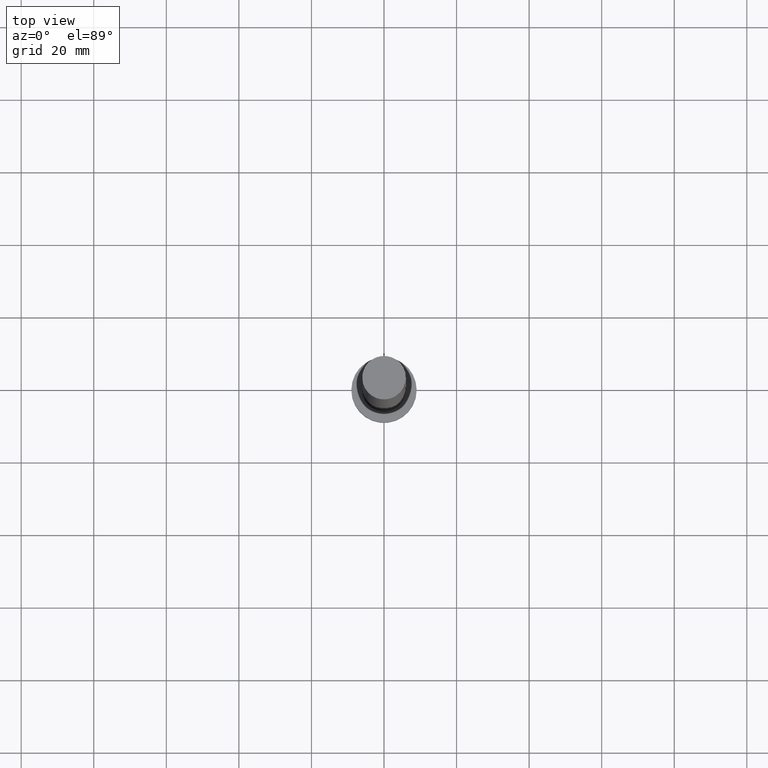
[diagram: clean part render]
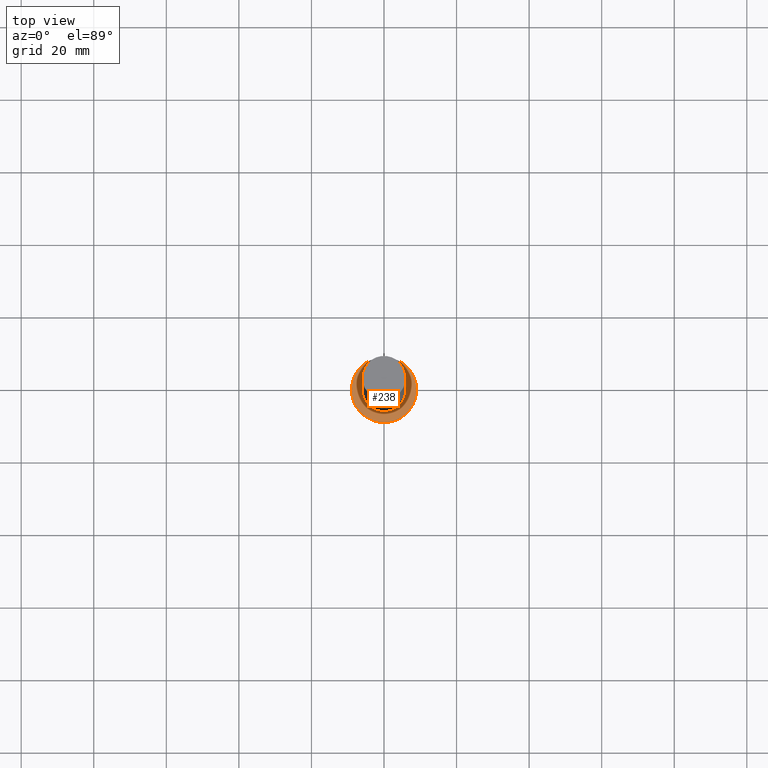
[diagram: same view with one face highlighted and labeled with its STEP entity id]
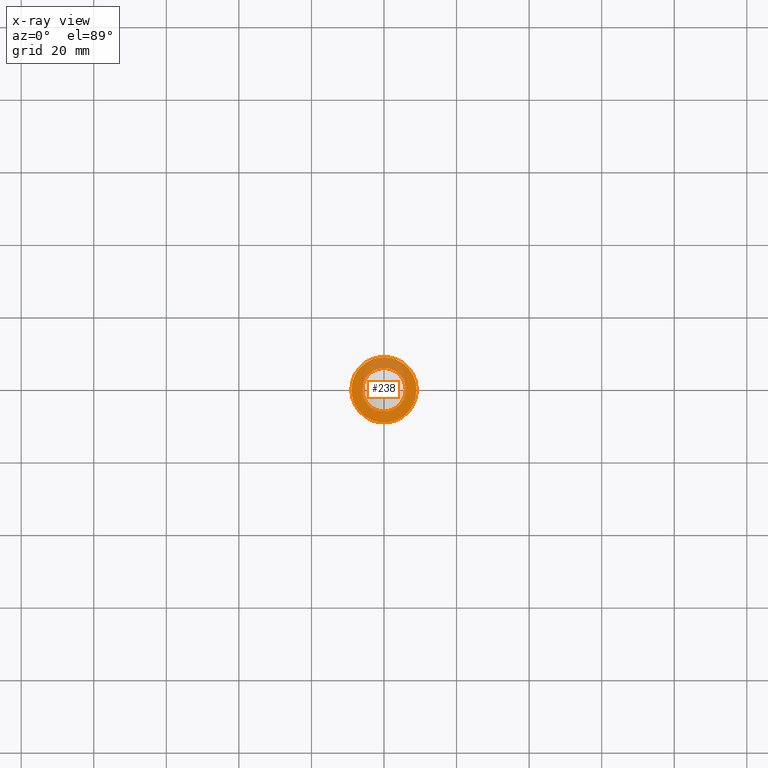
[diagram: x-ray of the same camera — body ghosted, the highlighted face saturated]
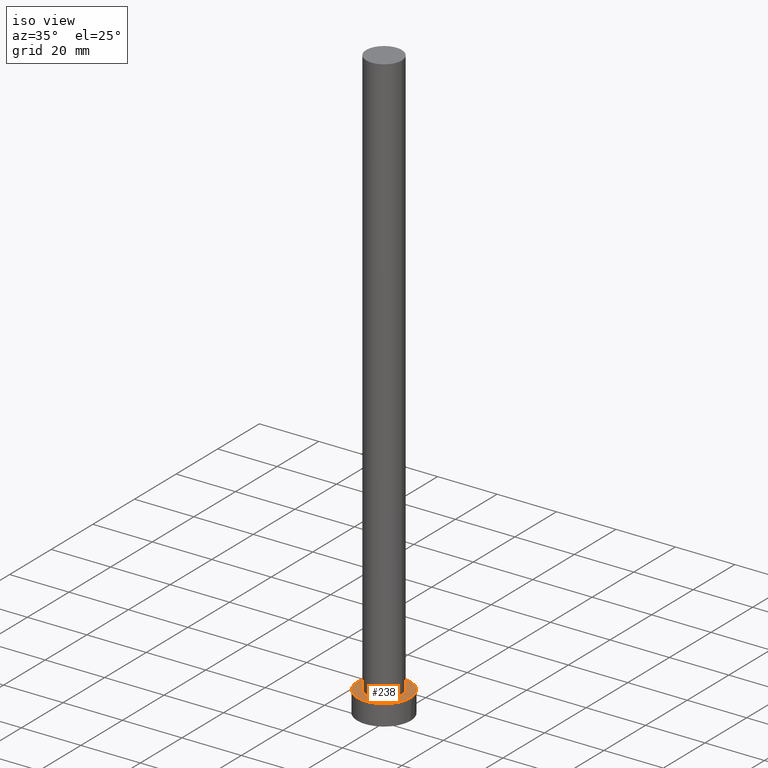
[diagram: same view with one face highlighted and labeled with its STEP entity id]
A machine part, top view. The second image highlights one B-rep face of the part: STEP entity #238.
The next image is the same camera in x-ray: the body ghosted, the highlighted face saturated — about 28% of this face is hidden behind the body in this view.
A second angle (iso view) of the same face is appended — the face is thin or edge-on in the first view.
In plain terms, the highlighted planar face has unit normal (0, 0, 1).
Its self-contained STEP definition (entity closure, byte-faithful):
#5 = ORIENTED_EDGE ( 'NONE', *, *, #43, .F. ) ;
#6 = DIRECTION ( 'NONE',  ( 1.000000000000000000, 0.000000000000000000, 0.000000000000000000 ) ) ;
#7 = VERTEX_POINT ( 'NONE', #100 ) ;
#11 = AXIS2_PLACEMENT_3D ( 'NONE', #209, #192, #178 ) ;
#20 = FACE_BOUND ( 'NONE', #222, .T. ) ;
#21 = EDGE_CURVE ( 'NONE', #115, #7, #48, .T. ) ;
#27 = VERTEX_POINT ( 'NONE', #230 ) ;
#39 = CIRCLE ( 'NONE', #116, 6.000000000000000888 ) ;
#43 = EDGE_CURVE ( 'NONE', #7, #115, #39, .T. ) ;
#48 = CIRCLE ( 'NONE', #82, 6.000000000000000888 ) ;
#49 = ORIENTED_EDGE ( 'NONE', *, *, #160, .T. ) ;
#51 = VERTEX_POINT ( 'NONE', #190 ) ;
#55 = DIRECTION ( 'NONE',  ( 1.000000000000000000, 0.000000000000000000, 0.000000000000000000 ) ) ;
#56 = CARTESIAN_POINT ( 'NONE',  ( 0.000000000000000000, 0.000000000000000000, 7.000000000000000000 ) ) ;
#60 = DIRECTION ( 'NONE',  ( 0.000000000000000000, 0.000000000000000000, 1.000000000000000000 ) ) ;
#64 = CARTESIAN_POINT ( 'NONE',  ( -6.000000000000000888, 0.000000000000000000, 7.000000000000000000 ) ) ;
#67 = ORIENTED_EDGE ( 'NONE', *, *, #21, .F. ) ;
#72 = CARTESIAN_POINT ( 'NONE',  ( 0.000000000000000000, 0.000000000000000000, 7.000000000000000000 ) ) ;
#82 = AXIS2_PLACEMENT_3D ( 'NONE', #72, #141, #174 ) ;
#83 = EDGE_CURVE ( 'NONE', #51, #27, #201, .T. ) ;
#95 = DIRECTION ( 'NONE',  ( 0.000000000000000000, 0.000000000000000000, 1.000000000000000000 ) ) ;
#99 = DIRECTION ( 'NONE',  ( 0.000000000000000000, 0.000000000000000000, 1.000000000000000000 ) ) ;
#100 = CARTESIAN_POINT ( 'NONE',  ( 6.000000000000000888, 7.347880794884120722E-16, 7.000000000000000000 ) ) ;
#106 = AXIS2_PLACEMENT_3D ( 'NONE', #167, #95, #6 ) ;
#109 = FACE_OUTER_BOUND ( 'NONE', #241, .T. ) ;
#115 = VERTEX_POINT ( 'NONE', #64 ) ;
#116 = AXIS2_PLACEMENT_3D ( 'NONE', #224, #60, #55 ) ;
#134 = CIRCLE ( 'NONE', #11, 9.000000000000000000 ) ;
#141 = DIRECTION ( 'NONE',  ( 0.000000000000000000, 0.000000000000000000, 1.000000000000000000 ) ) ;
#151 = ORIENTED_EDGE ( 'NONE', *, *, #83, .T. ) ;
#160 = EDGE_CURVE ( 'NONE', #27, #51, #134, .T. ) ;
#167 = CARTESIAN_POINT ( 'NONE',  ( 0.000000000000000000, 0.000000000000000000, 7.000000000000000000 ) ) ;
#172 = DIRECTION ( 'NONE',  ( 1.000000000000000000, 0.000000000000000000, -0.000000000000000000 ) ) ;
#174 = DIRECTION ( 'NONE',  ( 1.000000000000000000, 0.000000000000000000, 0.000000000000000000 ) ) ;
#178 = DIRECTION ( 'NONE',  ( 1.000000000000000000, 0.000000000000000000, 0.000000000000000000 ) ) ;
#190 = CARTESIAN_POINT ( 'NONE',  ( 9.000000000000000000, 1.102182119232617714E-15, 7.000000000000000000 ) ) ;
#192 = DIRECTION ( 'NONE',  ( 0.000000000000000000, 0.000000000000000000, 1.000000000000000000 ) ) ;
#196 = AXIS2_PLACEMENT_3D ( 'NONE', #56, #99, #172 ) ;
#201 = CIRCLE ( 'NONE', #106, 9.000000000000000000 ) ;
#206 = PLANE ( 'NONE',  #196 ) ;
#209 = CARTESIAN_POINT ( 'NONE',  ( 0.000000000000000000, 0.000000000000000000, 7.000000000000000000 ) ) ;
#222 = EDGE_LOOP ( 'NONE', ( #67, #5 ) ) ;
#224 = CARTESIAN_POINT ( 'NONE',  ( 0.000000000000000000, 0.000000000000000000, 7.000000000000000000 ) ) ;
#230 = CARTESIAN_POINT ( 'NONE',  ( -9.000000000000000000, 0.000000000000000000, 7.000000000000000000 ) ) ;
#238 = ADVANCED_FACE ( 'NONE', ( #20, #109 ), #206, .T. ) ;
#241 = EDGE_LOOP ( 'NONE', ( #49, #151 ) ) ;